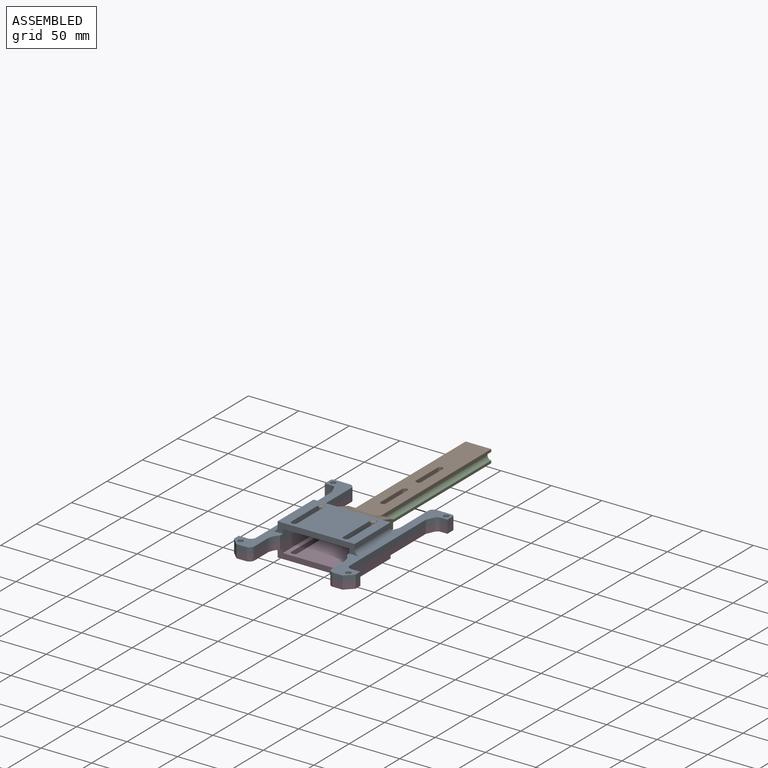
[diagram: assembled view]
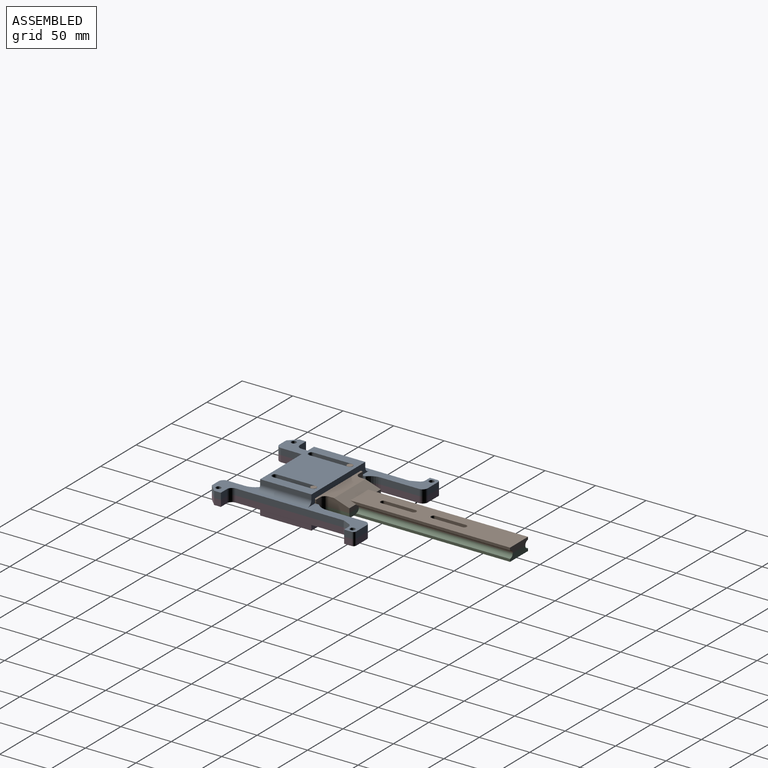
[diagram: assembled view, second angle]
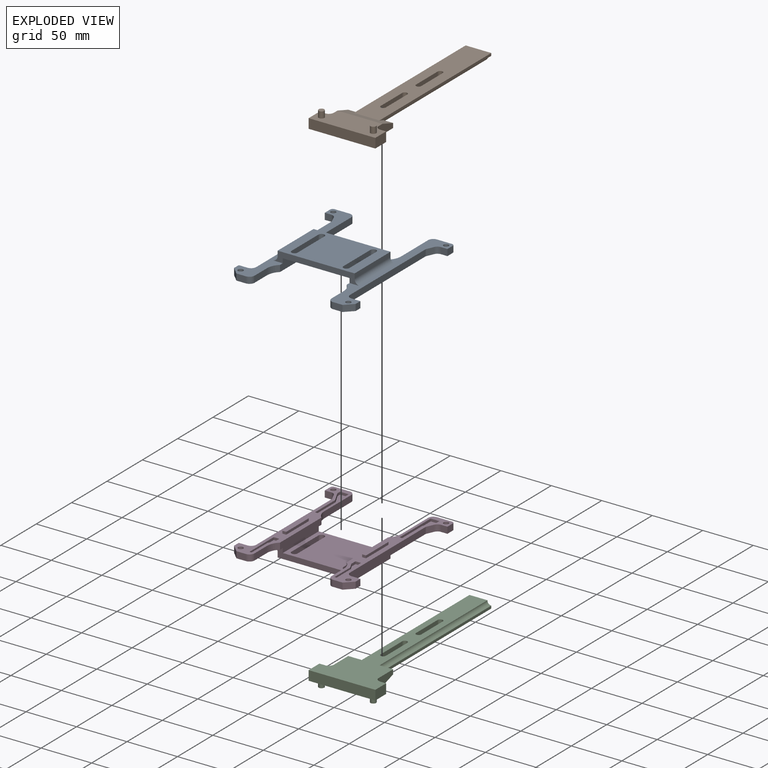
[diagram: exploded view]
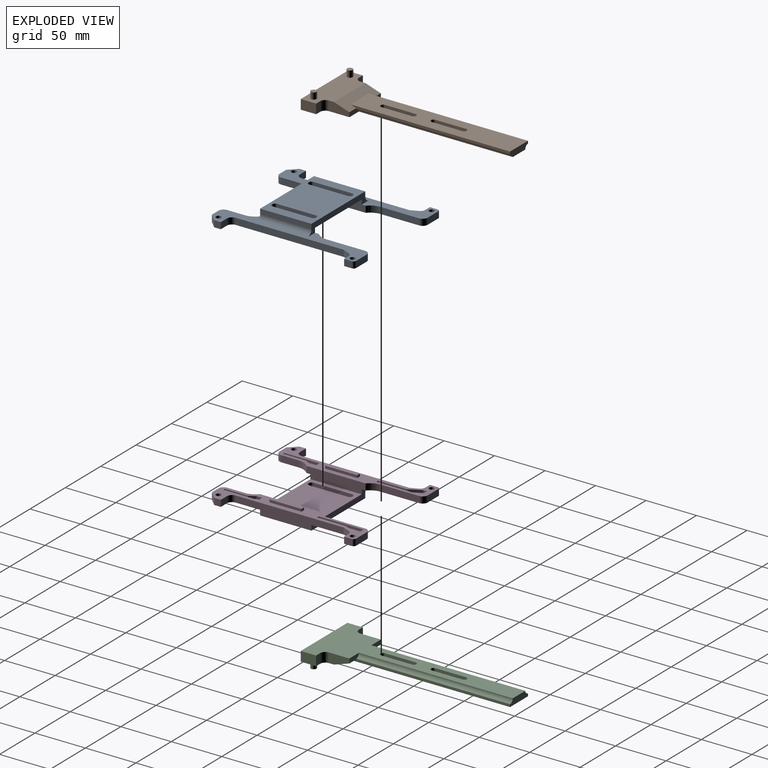
[diagram: exploded view, second angle]
ASSEMBLY  parts=4 mates=3
PART A: 100 faces, bbox 121.4x146.8x16.3 mm
  f0: plane 86.36x9.92mm, normal (0,-1,0), area 473.2mm2, adj f1,f2,f14,f17,f52,f53,f54,f55
  f1: plane 50.8x4.84mm, normal (1,0,0), area 245.7mm2, adj f0,f3,f56,f99
  f2: plane 50.8x4.84mm, normal (-1,0,0), area 245.7mm2, adj f0,f3,f55,f99
  f3: plane 86.36x9.92mm, normal (0,1,0), area 473.2mm2, adj f1,f2,f14,f17,f52,f53,f54,f55
  f4: plane 38.1x5.47mm, normal (-1,0,0), area 208.5mm2, adj f5,f7,f54,f99
  f5: cylinder r=3mm len=6mm, axis (0,0,1), area 51.6mm2, adj f4,f6,f54,f99
  f6: plane 38.1x5.47mm, normal (1,0,0), area 208.5mm2, adj f5,f7,f54,f99
  f7: cylinder r=3mm len=6mm, axis (0,0,1), area 51.6mm2, adj f4,f6,f54,f99
  f8: cylinder r=3mm len=6mm, axis (0,0,1), area 51.6mm2, adj f9,f11,f54,f99
  f9: plane 38.1x5.47mm, normal (-1,0,0), area 208.5mm2, adj f8,f10,f54,f99
  f10: cylinder r=3mm len=6mm, axis (0,0,1), area 51.6mm2, adj f9,f11,f54,f99
  f11: plane 38.1x5.47mm, normal (1,0,0), area 208.5mm2, adj f8,f10,f54,f99
  f12: plane 146.81x27.69mm, normal (0,0,1), area 1457.3mm2, adj f16,f19,f20,f21,f22,f23,f24,f25
  f13: plane 146.81x27.69mm, normal (0,0,1), area 1457.3mm2, adj f15,f18,f29,f30,f31,f32,f33,f34
  f14: plane 146.81x27.69mm, normal (0,0,-1), area 1336mm2, adj f0,f3,f16,f19,f20,f21,f22,f23
  f15: cylinder r=15.24mm len=11.36mm, axis (0,0,-1), area 81.4mm2, adj f13,f17,f29,f52
  f16: cylinder r=15.24mm len=11.36mm, axis (0,0,1), area 81.4mm2, adj f12,f14,f19,f53
  f17: plane 146.81x27.69mm, normal (0,0,-1), area 1336mm2, adj f0,f3,f15,f18,f29,f30,f31,f32
  f18: cylinder r=15.24mm len=11.36mm, axis (0,0,-1), area 81.4mm2, adj f13,f17,f38,f52
  f19: plane 38.02x6.35mm, normal (1,0,0), area 241.4mm2, adj f12,f14,f16,f45
  f20: plane 14.99x6.35mm, normal (0,1,0), area 95.2mm2, adj f12,f14,f45,f51
  f21: plane 7.62x6.35mm, normal (-1,0,0), area 48.4mm2, adj f12,f14,f22,f51
  f22: plane 6.35x6.35mm, normal (0,-1,0), area 40.3mm2, adj f12,f14,f21,f46
  f23: plane 7.27x6.35mm, normal (-0.91,-0.41,0), area 50.5mm2, adj f12,f14,f24,f46
  f24: plane 107.06x6.35mm, normal (-1,0,0), area 679.8mm2, adj f12,f14,f23,f43
  f25: plane 8.64x6.35mm, normal (0,1,0), area 54.8mm2, adj f12,f14,f26,f43
  f26: plane 6.6x6.35mm, normal (-1,0,0), area 41.9mm2, adj f12,f14,f25,f49
  f27: plane 9.4x6.35mm, normal (0,-1,0), area 59.7mm2, adj f12,f14,f44,f49
  f28: plane 17.35x6.35mm, normal (1,0,0), area 110.2mm2, adj f12,f14,f44,f47
  f29: plane 17.35x6.35mm, normal (-1,0,0), area 110.2mm2, adj f13,f15,f17,f40
  f30: plane 9.4x6.35mm, normal (0,-1,0), area 59.7mm2, adj f13,f17,f40,f48
  f31: plane 6.6x6.35mm, normal (1,0,0), area 41.9mm2, adj f13,f17,f32,f48
  f32: plane 8.64x6.35mm, normal (0,1,0), area 54.8mm2, adj f13,f17,f31,f41
  f33: plane 107.06x6.35mm, normal (1,0,0), area 679.8mm2, adj f13,f17,f34,f41
  f34: plane 7.27x6.35mm, normal (0.91,-0.41,0), area 50.5mm2, adj f13,f17,f33,f42
  f35: plane 6.35x6.35mm, normal (0,-1,0), area 40.3mm2, adj f13,f17,f36,f42
  f36: plane 7.62x6.35mm, normal (1,0,0), area 48.4mm2, adj f13,f17,f35,f50
  f37: plane 14.99x6.35mm, normal (0,1,0), area 95.2mm2, adj f13,f17,f39,f50
  f38: plane 38.02x6.35mm, normal (-1,0,0), area 241.4mm2, adj f13,f17,f18,f39
  f39: cylinder r=5.08mm len=6.35mm, axis (0,0,-1), area 50.7mm2, adj f13,f17,f37,f38
  f40: cylinder r=5.08mm len=6.35mm, axis (0,0,-1), area 50.7mm2, adj f13,f17,f29,f30
  f41: cylinder r=5.08mm len=6.35mm, axis (0,0,1), area 50.7mm2, adj f13,f17,f32,f33
  f42: cylinder r=5.08mm len=6.35mm, axis (0,0,-1), area 37.2mm2, adj f13,f17,f34,f35
  f43: cylinder r=5.08mm len=6.35mm, axis (0,0,1), area 50.7mm2, adj f12,f14,f24,f25
  f44: cylinder r=5.08mm len=6.35mm, axis (0,0,-1), area 50.7mm2, adj f12,f14,f27,f28
  f45: cylinder r=5.08mm len=6.35mm, axis (0,0,-1), area 50.7mm2, adj f12,f14,f19,f20
  f46: cylinder r=5.08mm len=6.35mm, axis (0,0,-1), area 37.2mm2, adj f12,f14,f22,f23
  f47: cylinder r=15.24mm len=11.36mm, axis (0,0,1), area 81.4mm2, adj f12,f14,f28,f53
  f48: plane 7.62x7.62mm, normal (0.71,-0.71,0), area 68.4mm2, adj f13,f17,f30,f31
  f49: plane 7.62x7.62mm, normal (-0.71,-0.71,0), area 68.4mm2, adj f12,f14,f26,f27
  f50: cylinder r=2.54mm len=6.35mm, axis (0,0,-1), area 25.3mm2, adj f13,f17,f36,f37
  f51: cylinder r=2.54mm len=6.35mm, axis (0,0,-1), area 25.3mm2, adj f12,f14,f20,f21
  f52: plane 58.56x10.8mm, normal (-1,0,0), area 597.7mm2, adj f0,f3,f13,f15,f17,f18,f54
  f53: plane 58.56x10.8mm, normal (1,0,0), area 597.7mm2, adj f0,f3,f12,f14,f16,f47,f54
  f54: plane 66.04x50.8mm, normal (0,0,1), area 2840.9mm2, adj f0,f3,f4,f5,f6,f7,f8,f9
  f55: cylinder r=5.08mm len=50.8mm, axis (0,-1,0), area 405.4mm2, adj f0,f2,f3,f14
  f56: cylinder r=5.08mm len=50.8mm, axis (0,1,0), area 405.4mm2, adj f0,f1,f3,f17
  f57: cylinder r=2.54mm len=6.35mm, axis (0,0,-1), area 101.3mm2, adj f13,f17
  f58: cylinder r=2.54mm len=6.35mm, axis (0,0,-1), area 101.3mm2, adj f13,f17
  f59: cylinder r=2.54mm len=6.35mm, axis (0,0,-1), area 101.3mm2, adj f12,f14
  f60: cylinder r=2.54mm len=6.35mm, axis (0,0,-1), area 101.3mm2, adj f12,f14
  f61: plane 8.63x2.54mm, normal (0,-1,0), area 21.9mm2, adj f13,f62,f66,f67
  f62: plane 44.01x2.54mm, normal (1,0,0), area 111.8mm2, adj f13,f61,f63,f67
  f63: plane 2.61x2.54mm, normal (0,1,0), area 6.6mm2, adj f13,f62,f64,f67
  f64: plane 28.64x2.54mm, normal (-1,0,0), area 72.7mm2, adj f13,f63,f65,f67
  f65: plane 11.73x6.03mm, normal (-0.89,0.46,0), area 33.5mm2, adj f13,f64,f66,f67
  f66: plane 3.64x2.54mm, normal (-1,0,0), area 9.3mm2, adj f13,f61,f65,f67
  f67: plane 44.01x8.63mm, normal (0,0,1), area 172mm2, adj f61,f62,f63,f64,f65,f66
  f68: plane 34.37x2.54mm, normal (-1,0,0), area 87.3mm2, adj f13,f69,f73,f74
  f69: plane 5.48x2.54mm, normal (0,-1,0), area 13.9mm2, adj f13,f68,f70,f74
  f70: plane 5.66x2.54mm, normal (1,0,0), area 14.4mm2, adj f13,f69,f71,f74
  f71: plane 6.18x3.38mm, normal (0.88,0.48,0), area 17.9mm2, adj f13,f70,f72,f74
  f72: plane 22.53x2.54mm, normal (1,0,0), area 57.2mm2, adj f13,f71,f73,f74
  f73: plane 2.54x2.1mm, normal (0,1,0), area 5.3mm2, adj f13,f68,f72,f74
  f74: plane 34.37x5.48mm, normal (0,0,1), area 101.8mm2, adj f68,f69,f70,f71,f72,f73
  f75: plane 34.37x2.54mm, normal (1,0,0), area 87.3mm2, adj f12,f76,f80,f81
  f76: plane 2.54x2.1mm, normal (0,1,0), area 5.3mm2, adj f12,f75,f77,f81
  f77: plane 22.53x2.54mm, normal (-1,0,0), area 57.2mm2, adj f12,f76,f78,f81
  f78: plane 6.18x3.38mm, normal (-0.88,0.48,0), area 17.9mm2, adj f12,f77,f79,f81
  f79: plane 5.66x2.54mm, normal (-1,0,0), area 14.4mm2, adj f12,f78,f80,f81
  f80: plane 5.48x2.54mm, normal (0,-1,0), area 13.9mm2, adj f12,f75,f79,f81
  f81: plane 34.37x5.48mm, normal (0,0,1), area 101.8mm2, adj f75,f76,f77,f78,f79,f80
  f82: plane 44.01x2.54mm, normal (-1,0,0), area 111.8mm2, adj f12,f83,f87,f88
  f83: plane 8.63x2.54mm, normal (0,-1,0), area 21.9mm2, adj f12,f82,f84,f88
  f84: plane 3.64x2.54mm, normal (1,0,0), area 9.3mm2, adj f12,f83,f85,f88
  f85: plane 11.73x6.03mm, normal (0.89,0.46,0), area 33.5mm2, adj f12,f84,f86,f88
  f86: plane 28.64x2.54mm, normal (1,0,0), area 72.7mm2, adj f12,f85,f87,f88
  f87: plane 2.61x2.54mm, normal (0,1,0), area 6.6mm2, adj f12,f82,f86,f88
  f88: plane 44.01x8.63mm, normal (0,0,1), area 172mm2, adj f82,f83,f84,f85,f86,f87
  f89: plane 3.81x2.54mm, normal (0,-1,0), area 9.7mm2, adj f13,f90,f92,f93
  f90: plane 31.75x2.54mm, normal (1,0,0), area 80.6mm2, adj f13,f89,f91,f93
  f91: plane 3.81x2.54mm, normal (0,1,0), area 9.7mm2, adj f13,f90,f92,f93
  f92: plane 31.75x2.54mm, normal (-1,0,0), area 80.6mm2, adj f13,f89,f91,f93
  f93: plane 31.75x3.81mm, normal (0,0,1), area 121mm2, adj f89,f90,f91,f92
  f94: plane 3.81x2.54mm, normal (0,-1,0), area 9.7mm2, adj f12,f95,f97,f98
  f95: plane 31.75x2.54mm, normal (1,0,0), area 80.6mm2, adj f12,f94,f96,f98
  f96: plane 3.81x2.54mm, normal (0,1,0), area 9.7mm2, adj f12,f95,f97,f98
  f97: plane 31.75x2.54mm, normal (-1,0,0), area 80.6mm2, adj f12,f94,f96,f98
  f98: plane 31.75x3.81mm, normal (0,0,1), area 121mm2, adj f94,f95,f96,f97
  f99: plane 76.2x50.8mm, normal (0,0,-1), area 3357mm2, adj f0,f1,f2,f3,f4,f5,f6,f7
PART B: 32 faces, bbox 66x193x15.9 mm
  f0: plane 13.34x4.45mm, normal (0,1,0), area 53.7mm2, adj f4,f12,f14,f18,f19
  f1: plane 30.48x6.35mm, normal (-1,0,0), area 193.5mm2, adj f2,f10,f11,f12
  f2: cylinder r=2.54mm len=6.35mm, axis (0,0,-1), area 50.7mm2, adj f1,f3,f11,f12
  f3: plane 30.48x6.35mm, normal (1,0,0), area 193.5mm2, adj f2,f10,f11,f12
  f4: plane 158.12x2.54mm, normal (-1,0,0), area 392.5mm2, adj f0,f11,f17,f18,f19
  f5: plane 158.12x2.54mm, normal (1,0,0), area 392.5mm2, adj f11,f13,f17,f18,f20
  f6: cylinder r=2.54mm len=6.35mm, axis (0,0,-1), area 50.7mm2, adj f7,f9,f11,f12
  f7: plane 30.48x6.35mm, normal (1,0,0), area 193.5mm2, adj f6,f8,f11,f12
  f8: cylinder r=2.54mm len=6.35mm, axis (0,0,-1), area 50.7mm2, adj f7,f9,f11,f12
  f9: plane 30.48x6.35mm, normal (-1,0,0), area 193.5mm2, adj f6,f8,f11,f12
  f10: cylinder r=2.54mm len=6.35mm, axis (0,0,-1), area 50.7mm2, adj f1,f3,f11,f12
  f11: plane 158.12x25.4mm, normal (0,0,1), area 3665.9mm2, adj f1,f2,f3,f4,f5,f6,f7,f8
  f12: plane 193.04x66.04mm, normal (0,0,-1), area 4506mm2, adj f0,f1,f2,f3,f6,f7,f8,f9
  f13: plane 13.34x4.45mm, normal (0,1,0), area 53.7mm2, adj f5,f12,f15,f18,f20
  f14: plane 20.32x9.53mm, normal (-1,0,0), area 154.8mm2, adj f0,f12,f16,f18,f26
  f15: plane 20.32x9.53mm, normal (1,0,0), area 154.8mm2, adj f12,f13,f16,f18,f27
  f16: plane 66.04x25.4mm, normal (0,0,1), area 1420.1mm2, adj f14,f15,f18,f21,f22,f23,f24,f25
  f17: plane 25.4x6.35mm, normal (0,1,0), area 138.5mm2, adj f4,f5,f11,f12,f19,f20
  f18: plane 44.45x15.24mm, normal (0,0.32,0.95), area 561mm2, adj f0,f4,f5,f11,f13,f14,f15,f16
  f19: cylinder r=3.81mm len=152.4mm, axis (0,1,0), area 912.1mm2, adj f0,f4,f12,f17
  f20: cylinder r=3.81mm len=152.4mm, axis (0,1,0), area 912.1mm2, adj f5,f12,f13,f17
  f21: plane 9.53x5.72mm, normal (0,1,0), area 54.4mm2, adj f12,f16,f25,f27
  f22: plane 9.53x5.72mm, normal (0,1,0), area 54.4mm2, adj f12,f16,f23,f26
  f23: plane 15.24x9.53mm, normal (-1,0,0), area 145.2mm2, adj f12,f16,f22,f24
  f24: plane 66.04x9.53mm, normal (0,-1,0), area 629mm2, adj f12,f16,f23,f25
  f25: plane 15.24x9.53mm, normal (1,0,0), area 145.2mm2, adj f12,f16,f21,f24
  f26: cylinder r=5.08mm len=9.53mm, axis (0,0,1), area 76mm2, adj f12,f14,f16,f22
  f27: cylinder r=5.08mm len=9.53mm, axis (0,0,-1), area 76mm2, adj f12,f15,f16,f21
  f28: cylinder r=2.79mm len=6.35mm, axis (0,0,-1), area 111.5mm2, adj f16,f29
  f29: plane 5.59x5.59mm, normal (0,0,1), area 24.5mm2, adj f28
  f30: cylinder r=2.79mm len=6.35mm, axis (0,0,-1), area 111.5mm2, adj f16,f31
  f31: plane 5.59x5.59mm, normal (0,0,1), area 24.5mm2, adj f30
PART C: 32 faces, bbox 66x193x15.9 mm
  f0: plane 13.34x4.45mm, normal (0,1,0), area 53.7mm2, adj f4,f12,f14,f18,f19
  f1: plane 30.48x6.35mm, normal (-1,0,0), area 193.5mm2, adj f2,f10,f11,f12
  f2: cylinder r=2.54mm len=6.35mm, axis (0,0,-1), area 50.7mm2, adj f1,f3,f11,f12
  f3: plane 30.48x6.35mm, normal (1,0,0), area 193.5mm2, adj f2,f10,f11,f12
  f4: plane 158.12x2.54mm, normal (-1,0,0), area 392.5mm2, adj f0,f11,f17,f18,f19
  f5: plane 158.12x2.54mm, normal (1,0,0), area 392.5mm2, adj f11,f13,f17,f18,f20
  f6: cylinder r=2.54mm len=6.35mm, axis (0,0,-1), area 50.7mm2, adj f7,f9,f11,f12
  f7: plane 30.48x6.35mm, normal (1,0,0), area 193.5mm2, adj f6,f8,f11,f12
  f8: cylinder r=2.54mm len=6.35mm, axis (0,0,-1), area 50.7mm2, adj f7,f9,f11,f12
  f9: plane 30.48x6.35mm, normal (-1,0,0), area 193.5mm2, adj f6,f8,f11,f12
  f10: cylinder r=2.54mm len=6.35mm, axis (0,0,-1), area 50.7mm2, adj f1,f3,f11,f12
  f11: plane 158.12x25.4mm, normal (0,0,1), area 3665.9mm2, adj f1,f2,f3,f4,f5,f6,f7,f8
  f12: plane 193.04x66.04mm, normal (0,0,-1), area 4506mm2, adj f0,f1,f2,f3,f6,f7,f8,f9
  f13: plane 13.34x4.45mm, normal (0,1,0), area 53.7mm2, adj f5,f12,f15,f18,f20
  f14: plane 20.32x9.53mm, normal (-1,0,0), area 154.8mm2, adj f0,f12,f16,f18,f26
  f15: plane 20.32x9.53mm, normal (1,0,0), area 154.8mm2, adj f12,f13,f16,f18,f27
  f16: plane 66.04x25.4mm, normal (0,0,1), area 1420.1mm2, adj f14,f15,f18,f21,f22,f23,f24,f25
  f17: plane 25.4x6.35mm, normal (0,1,0), area 138.5mm2, adj f4,f5,f11,f12,f19,f20
  f18: plane 44.45x15.24mm, normal (0,0.32,0.95), area 561mm2, adj f0,f4,f5,f11,f13,f14,f15,f16
  f19: cylinder r=3.81mm len=152.4mm, axis (0,1,0), area 912.1mm2, adj f0,f4,f12,f17
  f20: cylinder r=3.81mm len=152.4mm, axis (0,1,0), area 912.1mm2, adj f5,f12,f13,f17
  f21: plane 9.53x5.72mm, normal (0,1,0), area 54.4mm2, adj f12,f16,f25,f27
  f22: plane 9.53x5.72mm, normal (0,1,0), area 54.4mm2, adj f12,f16,f23,f26
  f23: plane 15.24x9.53mm, normal (-1,0,0), area 145.2mm2, adj f12,f16,f22,f24
  f24: plane 66.04x9.53mm, normal (0,-1,0), area 629mm2, adj f12,f16,f23,f25
  f25: plane 15.24x9.53mm, normal (1,0,0), area 145.2mm2, adj f12,f16,f21,f24
  f26: cylinder r=5.08mm len=9.53mm, axis (0,0,1), area 76mm2, adj f12,f14,f16,f22
  f27: cylinder r=5.08mm len=9.53mm, axis (0,0,-1), area 76mm2, adj f12,f15,f16,f21
  f28: cylinder r=2.79mm len=6.35mm, axis (0,0,-1), area 111.5mm2, adj f16,f29
  f29: plane 5.59x5.59mm, normal (0,0,1), area 24.5mm2, adj f28
  f30: cylinder r=2.79mm len=6.35mm, axis (0,0,-1), area 111.5mm2, adj f16,f31
  f31: plane 5.59x5.59mm, normal (0,0,1), area 24.5mm2, adj f30
PART D: 100 faces, bbox 121.4x146.8x18.7 mm
  f0: plane 86.36x9.79mm, normal (0,-1,0), area 463.9mm2, adj f1,f2,f14,f17,f62,f63,f64,f65
  f1: plane 50.8x4.71mm, normal (1,0,0), area 239.5mm2, adj f0,f3,f66,f99
  f2: plane 50.8x4.71mm, normal (-1,0,0), area 239.5mm2, adj f0,f3,f65,f99
  f3: plane 86.36x9.79mm, normal (0,1,0), area 463.9mm2, adj f1,f2,f14,f17,f62,f63,f64,f65
  f4: plane 38.1x5.35mm, normal (-1,0,0), area 203.8mm2, adj f5,f7,f64,f99
  f5: cylinder r=3mm len=6mm, axis (0,0,1), area 50.4mm2, adj f4,f6,f64,f99
  f6: plane 38.1x5.35mm, normal (1,0,0), area 203.8mm2, adj f5,f7,f64,f99
  f7: cylinder r=3mm len=6mm, axis (0,0,1), area 50.4mm2, adj f4,f6,f64,f99
  f8: cylinder r=3mm len=6mm, axis (0,0,1), area 50.4mm2, adj f9,f11,f64,f99
  f9: plane 38.1x5.35mm, normal (-1,0,0), area 203.8mm2, adj f8,f10,f64,f99
  f10: cylinder r=3mm len=6mm, axis (0,0,1), area 50.4mm2, adj f9,f11,f64,f99
  f11: plane 38.1x5.35mm, normal (1,0,0), area 203.8mm2, adj f8,f10,f64,f99
  f12: plane 146.81x27.69mm, normal (0,0,1), area 1457.3mm2, adj f16,f19,f20,f21,f22,f23,f24,f25
  f13: plane 146.81x27.69mm, normal (0,0,1), area 1457.3mm2, adj f15,f18,f29,f30,f31,f32,f33,f34
  f14: plane 146.81x27.69mm, normal (0,0,-1), area 1336mm2, adj f0,f3,f16,f19,f20,f21,f22,f23
  f15: cylinder r=15.24mm len=11.36mm, axis (0,0,-1), area 81.4mm2, adj f13,f17,f29,f62
  f16: cylinder r=15.24mm len=11.36mm, axis (0,0,1), area 81.4mm2, adj f12,f14,f19,f63
  f17: plane 146.81x27.69mm, normal (0,0,-1), area 1336mm2, adj f0,f3,f15,f18,f29,f30,f31,f32
  f18: cylinder r=15.24mm len=11.36mm, axis (0,0,-1), area 81.4mm2, adj f13,f17,f38,f62
  f19: plane 38.02x6.35mm, normal (1,0,0), area 241.4mm2, adj f12,f14,f16,f45
  f20: plane 14.99x6.35mm, normal (0,1,0), area 95.2mm2, adj f12,f14,f45,f51
  f21: plane 7.62x6.35mm, normal (-1,0,0), area 48.4mm2, adj f12,f14,f22,f51
  f22: plane 6.35x6.35mm, normal (0,-1,0), area 40.3mm2, adj f12,f14,f21,f46
  f23: plane 7.27x6.35mm, normal (-0.91,-0.41,0), area 50.5mm2, adj f12,f14,f24,f46
  f24: plane 107.06x6.35mm, normal (-1,0,0), area 679.8mm2, adj f12,f14,f23,f43
  f25: plane 8.64x6.35mm, normal (0,1,0), area 54.8mm2, adj f12,f14,f26,f43
  f26: plane 6.6x6.35mm, normal (-1,0,0), area 41.9mm2, adj f12,f14,f25,f49
  f27: plane 9.4x6.35mm, normal (0,-1,0), area 59.7mm2, adj f12,f14,f44,f49
  f28: plane 17.35x6.35mm, normal (1,0,0), area 110.2mm2, adj f12,f14,f44,f47
  f29: plane 17.35x6.35mm, normal (-1,0,0), area 110.2mm2, adj f13,f15,f17,f40
  f30: plane 9.4x6.35mm, normal (0,-1,0), area 59.7mm2, adj f13,f17,f40,f48
  f31: plane 6.6x6.35mm, normal (1,0,0), area 41.9mm2, adj f13,f17,f32,f48
  f32: plane 8.64x6.35mm, normal (0,1,0), area 54.8mm2, adj f13,f17,f31,f41
  f33: plane 107.06x6.35mm, normal (1,0,0), area 679.8mm2, adj f13,f17,f34,f41
  f34: plane 7.27x6.35mm, normal (0.91,-0.41,0), area 50.5mm2, adj f13,f17,f33,f42
  f35: plane 6.35x6.35mm, normal (0,-1,0), area 40.3mm2, adj f13,f17,f36,f42
  f36: plane 7.62x6.35mm, normal (1,0,0), area 48.4mm2, adj f13,f17,f35,f50
  f37: plane 14.99x6.35mm, normal (0,1,0), area 95.2mm2, adj f13,f17,f39,f50
  f38: plane 38.02x6.35mm, normal (-1,0,0), area 241.4mm2, adj f13,f17,f18,f39
  f39: cylinder r=5.08mm len=6.35mm, axis (0,0,-1), area 50.7mm2, adj f13,f17,f37,f38
  f40: cylinder r=5.08mm len=6.35mm, axis (0,0,-1), area 50.7mm2, adj f13,f17,f29,f30
  f41: cylinder r=5.08mm len=6.35mm, axis (0,0,1), area 50.7mm2, adj f13,f17,f32,f33
  f42: cylinder r=5.08mm len=6.35mm, axis (0,0,-1), area 37.2mm2, adj f13,f17,f34,f35
  f43: cylinder r=5.08mm len=6.35mm, axis (0,0,1), area 50.7mm2, adj f12,f14,f24,f25
  f44: cylinder r=5.08mm len=6.35mm, axis (0,0,-1), area 50.7mm2, adj f12,f14,f27,f28
  f45: cylinder r=5.08mm len=6.35mm, axis (0,0,-1), area 50.7mm2, adj f12,f14,f19,f20
  f46: cylinder r=5.08mm len=6.35mm, axis (0,0,-1), area 37.2mm2, adj f12,f14,f22,f23
  f47: cylinder r=15.24mm len=11.36mm, axis (0,0,1), area 81.4mm2, adj f12,f14,f28,f63
  f48: plane 7.62x7.62mm, normal (0.71,-0.71,0), area 68.4mm2, adj f13,f17,f30,f31
  f49: plane 7.62x7.62mm, normal (-0.71,-0.71,0), area 68.4mm2, adj f12,f14,f26,f27
  f50: cylinder r=2.54mm len=6.35mm, axis (0,0,-1), area 25.3mm2, adj f13,f17,f36,f37
  f51: cylinder r=2.54mm len=6.35mm, axis (0,0,-1), area 25.3mm2, adj f12,f14,f20,f21
  f52: plane 3.81x2.54mm, normal (0,1,0), area 9.7mm2, adj f12,f53,f55,f56
  f53: plane 31.75x2.54mm, normal (-1,0,0), area 80.6mm2, adj f12,f52,f54,f56
  f54: plane 3.81x2.54mm, normal (0,-1,0), area 9.7mm2, adj f12,f53,f55,f56
  f55: plane 31.75x2.54mm, normal (1,0,0), area 80.6mm2, adj f12,f52,f54,f56
  f56: plane 31.75x3.81mm, normal (0,0,1), area 121mm2, adj f52,f53,f54,f55
  f57: plane 3.81x2.54mm, normal (0,1,0), area 9.7mm2, adj f13,f58,f60,f61
  f58: plane 31.75x2.54mm, normal (-1,0,0), area 80.6mm2, adj f13,f57,f59,f61
  f59: plane 3.81x2.54mm, normal (0,-1,0), area 9.7mm2, adj f13,f58,f60,f61
  f60: plane 31.75x2.54mm, normal (1,0,0), area 80.6mm2, adj f13,f57,f59,f61
  f61: plane 31.75x3.81mm, normal (0,0,1), area 121mm2, adj f57,f58,f59,f60
  f62: plane 58.56x10.8mm, normal (-1,0,0), area 597.7mm2, adj f0,f3,f13,f15,f17,f18,f64
  f63: plane 58.56x10.8mm, normal (1,0,0), area 597.7mm2, adj f0,f3,f12,f14,f16,f47,f64
  f64: plane 66.04x50.8mm, normal (0,0,1), area 2840.9mm2, adj f0,f3,f4,f5,f6,f7,f8,f9
  f65: cylinder r=5.08mm len=50.8mm, axis (0,-1,0), area 405.4mm2, adj f0,f2,f3,f14
  f66: cylinder r=5.08mm len=50.8mm, axis (0,1,0), area 405.4mm2, adj f0,f1,f3,f17
  f67: cylinder r=2.54mm len=6.35mm, axis (0,0,-1), area 101.3mm2, adj f13,f17
  f68: cylinder r=2.54mm len=6.35mm, axis (0,0,-1), area 101.3mm2, adj f13,f17
  f69: cylinder r=2.54mm len=6.35mm, axis (0,0,-1), area 101.3mm2, adj f12,f14
  f70: cylinder r=2.54mm len=6.35mm, axis (0,0,-1), area 101.3mm2, adj f12,f14
  f71: plane 8.63x2.54mm, normal (0,-1,0), area 21.9mm2, adj f13,f72,f76,f77
  f72: plane 44.01x2.54mm, normal (1,0,0), area 111.8mm2, adj f13,f71,f73,f77
  f73: plane 2.61x2.54mm, normal (0,1,0), area 6.6mm2, adj f13,f72,f74,f77
  f74: plane 28.64x2.54mm, normal (-1,0,0), area 72.7mm2, adj f13,f73,f75,f77
  f75: plane 11.73x6.03mm, normal (-0.89,0.46,0), area 33.5mm2, adj f13,f74,f76,f77
  f76: plane 3.64x2.54mm, normal (-1,0,0), area 9.3mm2, adj f13,f71,f75,f77
  f77: plane 44.01x8.63mm, normal (0,0,1), area 172mm2, adj f71,f72,f73,f74,f75,f76
  f78: plane 34.37x2.54mm, normal (-1,0,0), area 87.3mm2, adj f13,f79,f83,f84
  f79: plane 5.48x2.54mm, normal (0,-1,0), area 13.9mm2, adj f13,f78,f80,f84
  f80: plane 5.66x2.54mm, normal (1,0,0), area 14.4mm2, adj f13,f79,f81,f84
  f81: plane 6.18x3.38mm, normal (0.88,0.48,0), area 17.9mm2, adj f13,f80,f82,f84
  f82: plane 22.53x2.54mm, normal (1,0,0), area 57.2mm2, adj f13,f81,f83,f84
  f83: plane 2.54x2.1mm, normal (0,1,0), area 5.3mm2, adj f13,f78,f82,f84
  f84: plane 34.37x5.48mm, normal (0,0,1), area 101.8mm2, adj f78,f79,f80,f81,f82,f83
  f85: plane 34.37x2.54mm, normal (1,0,0), area 87.3mm2, adj f12,f86,f90,f91
  f86: plane 2.54x2.1mm, normal (0,1,0), area 5.3mm2, adj f12,f85,f87,f91
  f87: plane 22.53x2.54mm, normal (-1,0,0), area 57.2mm2, adj f12,f86,f88,f91
  f88: plane 6.18x3.38mm, normal (-0.88,0.48,0), area 17.9mm2, adj f12,f87,f89,f91
  f89: plane 5.66x2.54mm, normal (-1,0,0), area 14.4mm2, adj f12,f88,f90,f91
  f90: plane 5.48x2.54mm, normal (0,-1,0), area 13.9mm2, adj f12,f85,f89,f91
  f91: plane 34.37x5.48mm, normal (0,0,1), area 101.8mm2, adj f85,f86,f87,f88,f89,f90
  f92: plane 44.01x2.54mm, normal (-1,0,0), area 111.8mm2, adj f12,f93,f97,f98
  f93: plane 8.63x2.54mm, normal (0,-1,0), area 21.9mm2, adj f12,f92,f94,f98
  f94: plane 3.64x2.54mm, normal (1,0,0), area 9.3mm2, adj f12,f93,f95,f98
  f95: plane 11.73x6.03mm, normal (0.89,0.46,0), area 33.5mm2, adj f12,f94,f96,f98
  f96: plane 28.64x2.54mm, normal (1,0,0), area 72.7mm2, adj f12,f95,f97,f98
  f97: plane 2.61x2.54mm, normal (0,1,0), area 6.6mm2, adj f12,f92,f96,f98
  f98: plane 44.01x8.63mm, normal (0,0,1), area 172mm2, adj f92,f93,f94,f95,f96,f97
  f99: plane 76.2x50.8mm, normal (0,0,-1), area 3357mm2, adj f0,f1,f2,f3,f4,f5,f6,f7
PLACE A rot(axis=(0,1,0),180deg) t=(0,0,139.7)mm
PLACE B rot(axis=(0,1,0),0deg) t=(-0.05,39.24,6.74)mm
PLACE C rot(axis=(0,1,0),180deg) t=(-0.05,39.24,133.74)mm
PLACE D at identity
MATE cylindrical B.f28 <-> A.f5  axis (0,0,1) through (-25.7,18.92,22.62)mm
MATE pin_slot A.f57 <-> D.f69  axis (0,0,-1) through (-55.88,78.74,6.35)mm
MATE pin_slot C.f8 <-> B.f8  axis (0,0,1) through (-0.05,150.2,6.74)mm
